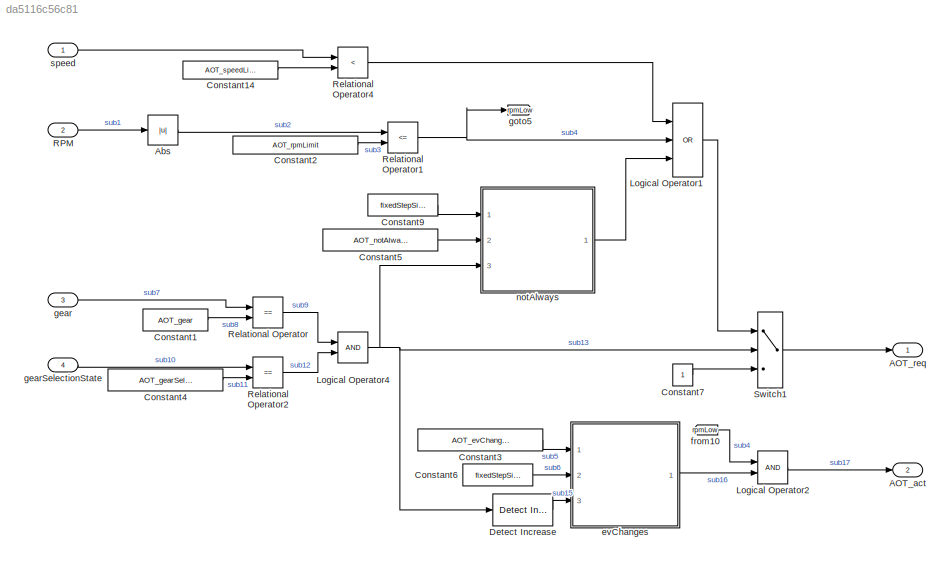
MODEL slx_da5116c56c81
KIND model
CONFIG AbsTol = auto
CONFIG EnableMultiTasking = off
CONFIG FixedStep = fixedStepSize
CONFIG MaxStep = auto
CONFIG MinStep = auto
CONFIG RelTol = 1e-3
CONFIG SampleTimeConstraint = Unconstrained
CONFIG Solver = FixedStepAuto
CONFIG SolverName = FixedStepAuto
CONFIG StartTime = 0.0
CONFIG StopTime = 10.0
BLOCK [Outport] AOT_act
  IconDisplay = Port number
  OutDataTypeStr = boolean
  Port = 2
  PortDimensions = 1
  SamplingMode = Sample based
  SignalType = real
  VectorParamsAs1DForOutWhenUnconnected = off
BLOCK [Outport] AOT_req
  IconDisplay = Port number
  OutDataTypeStr = boolean
  PortDimensions = 1
  SamplingMode = Sample based
  SignalType = real
  VectorParamsAs1DForOutWhenUnconnected = off
BLOCK [Abs] Abs
  SaturateOnIntegerOverflow = off
BLOCK [Constant] Constant1
  Value = AOT_gear
BLOCK [Constant] Constant14
  Value = AOT_speedLimit
BLOCK [Constant] Constant2
  Value = AOT_rpmLimit
BLOCK [Constant] Constant3
  Value = AOT_evChangesDuration
BLOCK [Constant] Constant4
  Value = AOT_gearSelectionState
BLOCK [Constant] Constant5
  Value = AOT_notAlwaysHorizon
BLOCK [Constant] Constant6
  Value = fixedStepSize
BLOCK [Constant] Constant7
  OutDataTypeStr = boolean
BLOCK [Constant] Constant9
  Value = fixedStepSize
BLOCK [Reference] Detect Increase  REF=simulink/Logic and Bit
Operations/Detect
Increase
  Ports = [1, 1]
  SourceBlock = simulink/Logic and Bit\nOperations/Detect\nIncrease
  SourceProductBaseCode = SL
  SourceProductName = Simulink
  SourceType = Detect Increase
BLOCK [Logic] Logical Operator1
  AllPortsSameDT = off
  Inputs = 3
  Operator = OR
  OutDataTypeStr = boolean
  Ports = [3, 1]
BLOCK [Logic] Logical Operator2
  AllPortsSameDT = off
  OutDataTypeStr = boolean
  Ports = [2, 1]
BLOCK [Logic] Logical Operator4
  AllPortsSameDT = off
  OutDataTypeStr = boolean
  Ports = [2, 1]
BLOCK [Inport] RPM
  IconDisplay = Port number
  Port = 2
BLOCK [RelationalOperator] Relational Operator
  InputSameDT = off
  Operator = ==
  OutDataTypeStr = boolean
  Ports = [2, 1]
BLOCK [RelationalOperator] Relational Operator1
  InputSameDT = off
  Operator = <=
  OutDataTypeStr = boolean
  Ports = [2, 1]
BLOCK [RelationalOperator] Relational Operator2
  InputSameDT = off
  Operator = ==
  OutDataTypeStr = boolean
  Ports = [2, 1]
BLOCK [RelationalOperator] Relational Operator4
  InputSameDT = off
  Operator = <
  OutDataTypeStr = boolean
  Ports = [2, 1]
BLOCK [Switch] Switch1
  Criteria = u2 ~= 0
  InputSameDT = off
  SaturateOnIntegerOverflow = off
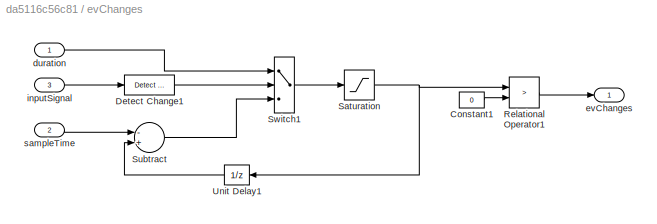
BLOCK [SubSystem] evChanges
  CopyFcn = set_param(gcbh,'LinkStatus','none');
  Ports = [3, 1]
  RequestExecContextInheritance = off
BLOCK [Constant] evChanges/Constant1
  Value = 0
BLOCK [Reference] evChanges/Detect Change1  REF=simulink/Logic and Bit
Operations/Detect
Change
  Ports = [1, 1]
  SourceBlock = simulink/Logic and Bit\nOperations/Detect\nChange
  SourceProductBaseCode = SL
  SourceProductName = Simulink
  SourceType = Detect Change
BLOCK [RelationalOperator] evChanges/Relational Operator1
  InputSameDT = off
  Operator = >
  OutDataTypeStr = boolean
  Ports = [2, 1]
BLOCK [Saturate] evChanges/Saturation
  InputPortMap = u0
  LowerLimit = 0
  Ports = [1, 1]
  UpperLimit = Inf
BLOCK [Sum] evChanges/Subtract
  InputSameDT = off
  Inputs = -+
  OutDataTypeStr = Inherit: Inherit via internal rule
  Ports = [2, 1]
  SaturateOnIntegerOverflow = off
BLOCK [Switch] evChanges/Switch1
  Criteria = u2 ~= 0
  InputSameDT = off
  SaturateOnIntegerOverflow = off
BLOCK [UnitDelay] evChanges/Unit Delay1
  HasFrameUpgradeWarning = on
  SampleTime = -1
BLOCK [Inport] evChanges/duration
  IconDisplay = Port number
BLOCK [Outport] evChanges/evChanges
  IconDisplay = Port number
  VectorParamsAs1DForOutWhenUnconnected = off
BLOCK [Inport] evChanges/inputSignal
  IconDisplay = Port number
  Port = 3
BLOCK [Inport] evChanges/sampleTime
  IconDisplay = Port number
  Port = 2
BLOCK [From] from10
  AttributesFormatString = %<GotoTag>
  GotoTag = rpmLow
BLOCK [Inport] gear
  IconDisplay = Port number
  Port = 3
BLOCK [Inport] gearSelectionState
  IconDisplay = Port number
  Port = 4
BLOCK [Goto] goto5
  AttributesFormatString = %<GotoTag>
  GotoTag = rpmLow
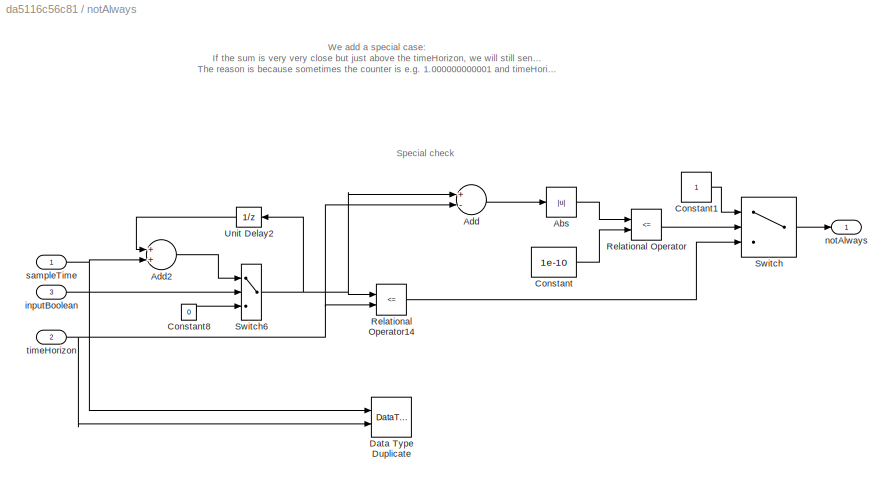
BLOCK [SubSystem] notAlways
  CopyFcn = set_param(gcbh,'LinkStatus','none');
  Ports = [3, 1]
  RequestExecContextInheritance = off
BLOCK [Abs] notAlways/Abs
  SaturateOnIntegerOverflow = off
BLOCK [Sum] notAlways/Add
  InputSameDT = off
  Inputs = +-
  OutDataTypeStr = Inherit: Inherit via internal rule
  Ports = [2, 1]
  SaturateOnIntegerOverflow = off
BLOCK [Sum] notAlways/Add2
  InputSameDT = off
  OutDataTypeStr = Inherit: Inherit via internal rule
  Ports = [2, 1]
  SaturateOnIntegerOverflow = off
BLOCK [Constant] notAlways/Constant
  Value = 1e-10
BLOCK [Constant] notAlways/Constant1
  OutDataTypeStr = boolean
BLOCK [Constant] notAlways/Constant8
  OutDataTypeStr = Inherit: Inherit via back propagation
  Value = 0
BLOCK [DataTypeDuplicate] notAlways/Data Type Duplicate
  Ports = [2]
BLOCK [RelationalOperator] notAlways/Relational Operator
  InputSameDT = off
  Operator = <=
  OutDataTypeStr = boolean
  Ports = [2, 1]
  RndMeth = Simplest
BLOCK [RelationalOperator] notAlways/Relational Operator14
  InputSameDT = off
  Operator = <=
  OutDataTypeStr = boolean
  Ports = [2, 1]
BLOCK [Switch] notAlways/Switch
  Criteria = u2 ~= 0
  InputSameDT = off
  SaturateOnIntegerOverflow = off
BLOCK [Switch] notAlways/Switch6
  Criteria = u2 ~= 0
  InputSameDT = off
  SaturateOnIntegerOverflow = off
BLOCK [UnitDelay] notAlways/Unit Delay2
  HasFrameUpgradeWarning = on
  SampleTime = -1
BLOCK [Inport] notAlways/inputBoolean
  IconDisplay = Port number
  Port = 3
BLOCK [Outport] notAlways/notAlways
  IconDisplay = Port number
  VectorParamsAs1DForOutWhenUnconnected = off
BLOCK [Inport] notAlways/sampleTime
  IconDisplay = Port number
BLOCK [Inport] notAlways/timeHorizon
  IconDisplay = Port number
  Port = 2
BLOCK [Inport] speed
  IconDisplay = Port number
ANNOTATION notAlways: We add a special case: If the sum is very very close but just above the timeHorizon, we will still send TRUE as output! The reason is because sometimes the counter is e.g. 1.000000000001 and timeHorizon is 1, which is essentially just a floating point error.
ANNOTATION notAlways: Special check
LINE Abs:1 -> Relational Operator1:1
LINE Constant14:1 -> Relational Operator4:2
LINE Constant1:1 -> Relational Operator:2
LINE Constant2:1 -> Relational Operator1:2
LINE Constant3:1 -> evChanges:1
LINE Constant4:1 -> Relational Operator2:2
LINE Constant5:1 -> notAlways:2
LINE Constant6:1 -> evChanges:2
LINE Constant7:1 -> Switch1:3
LINE Constant9:1 -> notAlways:1
LINE Detect Increase:1 -> evChanges:3
LINE Logical Operator1:1 -> Switch1:1
LINE Logical Operator2:1 -> AOT_act:1
NET Logical Operator4:1 -> Detect Increase:1, Switch1:2, notAlways:3
LINE RPM:1 -> Abs:1
NET Relational Operator1:1 -> Logical Operator1:2, goto5:1
LINE Relational Operator2:1 -> Logical Operator4:2
LINE Relational Operator4:1 -> Logical Operator1:1
LINE Relational Operator:1 -> Logical Operator4:1
LINE Switch1:1 -> AOT_req:1
LINE evChanges/Constant1:1 -> evChanges/Relational Operator1:2
LINE evChanges/Detect Change1:1 -> evChanges/Switch1:2
LINE evChanges/Relational Operator1:1 -> evChanges/evChanges:1
NET evChanges/Saturation:1 -> evChanges/Relational Operator1:1, evChanges/Unit Delay1:1
LINE evChanges/Subtract:1 -> evChanges/Switch1:3
LINE evChanges/Switch1:1 -> evChanges/Saturation:1
LINE evChanges/Unit Delay1:1 -> evChanges/Subtract:2
LINE evChanges/duration:1 -> evChanges/Switch1:1
LINE evChanges/inputSignal:1 -> evChanges/Detect Change1:1
LINE evChanges/sampleTime:1 -> evChanges/Subtract:1
LINE evChanges:1 -> Logical Operator2:2
LINE from10:1 -> Logical Operator2:1
LINE gear:1 -> Relational Operator:1
LINE gearSelectionState:1 -> Relational Operator2:1
LINE notAlways/Abs:1 -> notAlways/Relational Operator:1
LINE notAlways/Add2:1 -> notAlways/Switch6:1
LINE notAlways/Add:1 -> notAlways/Abs:1
LINE notAlways/Constant1:1 -> notAlways/Switch:1
LINE notAlways/Constant8:1 -> notAlways/Switch6:3
LINE notAlways/Constant:1 -> notAlways/Relational Operator:2
LINE notAlways/Relational Operator14:1 -> notAlways/Switch:3
LINE notAlways/Relational Operator:1 -> notAlways/Switch:2
NET notAlways/Switch6:1 -> notAlways/Add:1, notAlways/Relational Operator14:1, notAlways/Unit Delay2:1
LINE notAlways/Switch:1 -> notAlways/notAlways:1
LINE notAlways/Unit Delay2:1 -> notAlways/Add2:1
LINE notAlways/inputBoolean:1 -> notAlways/Switch6:2
NET notAlways/sampleTime:1 -> notAlways/Add2:2, notAlways/Data Type Duplicate:1
NET notAlways/timeHorizon:1 -> notAlways/Add:2, notAlways/Data Type Duplicate:2, notAlways/Relational Operator14:2
LINE notAlways:1 -> Logical Operator1:3
LINE speed:1 -> Relational Operator4:1
note: NET lines group one-source signal fan-out (src -> all destinations, sorted); 1:1 wires keep LINE
